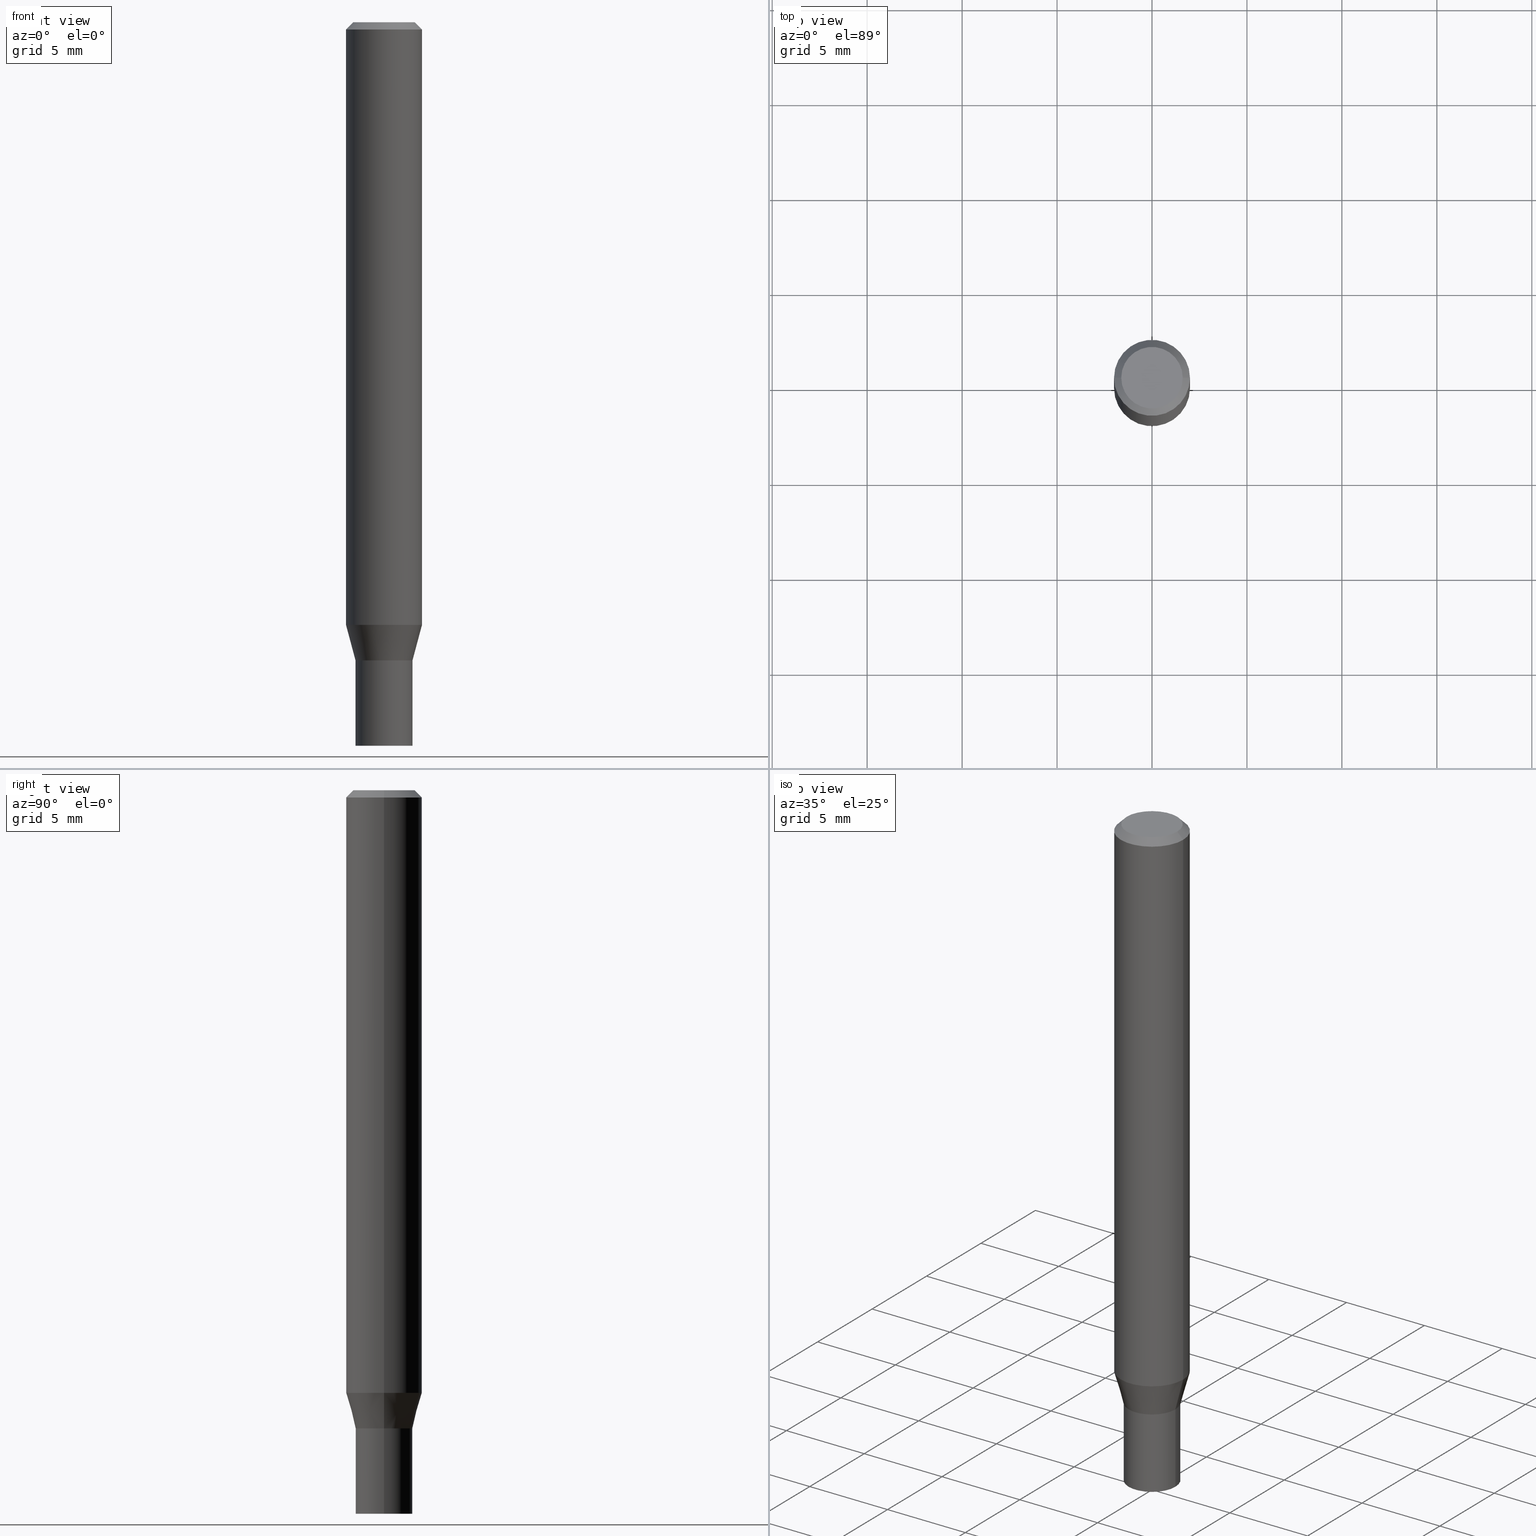
[diagram: canonical four-view strip — front | top / right | iso, engineering-drawing reading convention]
A machine part, canonical four-view strip (front | top / right | iso — engineering-drawing reading convention). The complete STEP part file that produces these views, byte-faithful:
ISO-10303-21;
HEADER;
FILE_DESCRIPTION (( 'STEP AP203' ),
    '1' );
FILE_NAME ('02903.STEP',
    '2024-03-18T22:08:52',
    ( '' ),
    ( '' ),
    'SwSTEP 2.0',
    'SolidWorks 2023',
    '' );
FILE_SCHEMA (( 'CONFIG_CONTROL_DESIGN' ));
ENDSEC;

DATA;
#1 = AXIS2_PLACEMENT_3D ( 'NONE', #93, #374, #340 ) ;
#2 = ORIENTED_EDGE ( 'NONE', *, *, #462, .F. ) ;
#3 = APPROVAL_DATE_TIME ( #115, #203 ) ;
#4 = CARTESIAN_POINT ( 'NONE',  ( 0.000000000000000000, 0.000000000000000000, 0.000000000000000000 ) ) ;
#5 = CARTESIAN_POINT ( 'NONE',  ( -0.07875000000000000056, 4.975360907851462665E-16, -0.01499999999999999944 ) ) ;
#6 = DIRECTION ( 'NONE',  ( -2.445468806185136597E-29, 3.491481338843145583E-15, 1.000000000000000000 ) ) ;
#7 = DATE_AND_TIME ( #288, #436 ) ;
#8 = ADVANCED_FACE ( 'NONE', ( #397 ), #267, .F. ) ;
#9 = CARTESIAN_POINT ( 'NONE',  ( 0.05904999999999992200, -5.029129720469665485E-15, -1.322300000000000253 ) ) ;
#10 = CARTESIAN_POINT ( 'NONE',  ( 3.668203209277705088E-31, -5.237222008264718399E-17, -0.01499999999999999944 ) ) ;
#11 = COORDINATED_UNIVERSAL_TIME_OFFSET ( 5, 0, .BEHIND. ) ;
#12 = EDGE_LOOP ( 'NONE', ( #332, #40, #91, #136 ) ) ;
#13 = CARTESIAN_POINT ( 'NONE',  ( 0.000000000000000000, 0.000000000000000000, 0.000000000000000000 ) ) ;
#14 = EDGE_CURVE ( 'NONE', #253, #335, #94, .T. ) ;
#15 = DIRECTION ( 'NONE',  ( 1.000000000000000000, -6.982962677686265922E-15, 4.852736867747365646E-29 ) ) ;
#16 = CARTESIAN_POINT ( 'NONE',  ( 3.668203209277704895E-29, -5.237222008264718177E-15, -1.500000000000000222 ) ) ;
#17 = CARTESIAN_POINT ( 'NONE',  ( 3.234866136821698561E-29, -4.618531515021712857E-15, -1.322800000000000198 ) ) ;
#18 = VERTEX_POINT ( 'NONE', #406 ) ;
#19 = DIRECTION ( 'NONE',  ( -2.445468806185136877E-29, 3.491481338843145188E-15, 1.000000000000000000 ) ) ;
#20 = APPROVAL_PERSON_ORGANIZATION ( #23, #170, #164 ) ;
#21 = EDGE_CURVE ( 'NONE', #227, #198, #353, .T. ) ;
#22 = DIRECTION ( 'NONE',  ( -2.445468806185136597E-29, 3.491481338843145583E-15, 1.000000000000000000 ) ) ;
#23 = PERSON_AND_ORGANIZATION ( #31, #415 ) ;
#24 = LINE ( 'NONE', #409, #177 ) ;
#25 = DIRECTION ( 'NONE',  ( -0.2588190451025217942, 5.211531920934552619E-15, 0.9659258262890679791 ) ) ;
#26 = CARTESIAN_POINT ( 'NONE',  ( 3.235355230582935570E-29, -4.619229811289481459E-15, -1.323000000000000176 ) ) ;
#27 = AXIS2_PLACEMENT_3D ( 'NONE', #54, #349, #434 ) ;
#28 = CONICAL_SURFACE ( 'NONE', #423, 0.05854999999999999788, 0.7853981633974739252 ) ;
#29 = CARTESIAN_POINT ( 'NONE',  ( 0.07875000000000000056, -5.499083108677934443E-16, 3.839989210939299016E-30 ) ) ;
#30 = DIRECTION ( 'NONE',  ( 1.000000000000000000, 0.000000000000000000, 0.000000000000000000 ) ) ;
#31 = PERSON ( 'UNSPECIFIED', 'UNSPECIFIED', 'UNSPECIFIED', ('UNSPECIFIED'), ('UNSPECIFIED'), ('UNSPECIFIED') ) ;
#32 = APPLICATION_PROTOCOL_DEFINITION ( 'international standard', 'config_control_design', 1994, #225 ) ;
#33 = EDGE_CURVE ( 'NONE', #116, #38, #34, .T. ) ;
#34 = CIRCLE ( 'NONE', #49, 0.06375000000000000111 ) ;
#35 = CONICAL_SURFACE ( 'NONE', #42, 0.05904999999999991506, 0.2617993877991505181 ) ;
#36 = ORIENTED_EDGE ( 'NONE', *, *, #130, .F. ) ;
#37 = ORIENTED_EDGE ( 'NONE', *, *, #249, .T. ) ;
#38 = VERTEX_POINT ( 'NONE', #90 ) ;
#39 =( CONVERSION_BASED_UNIT ( 'INCH', #248 ) LENGTH_UNIT ( ) NAMED_UNIT ( #392 ) );
#40 = ORIENTED_EDGE ( 'NONE', *, *, #341, .T. ) ;
#41 = CONICAL_SURFACE ( 'NONE', #303, 0.05904999999999991506, 0.2617993877991505181 ) ;
#42 = AXIS2_PLACEMENT_3D ( 'NONE', #26, #127, #272 ) ;
#43 = EDGE_LOOP ( 'NONE', ( #36, #2, #287, #72 ) ) ;
#44 = ADVANCED_FACE ( 'NONE', ( #229 ), #56, .T. ) ;
#45 = DIRECTION ( 'NONE',  ( 0.7071067811865426878, -7.319954787623238690E-15, -0.7071067811865523467 ) ) ;
#46 = DIRECTION ( 'NONE',  ( 1.000000000000000000, -6.982962677686266711E-15, 4.876176775795936353E-29 ) ) ;
#47 = FACE_OUTER_BOUND ( 'NONE', #352, .T. ) ;
#48 = EDGE_LOOP ( 'NONE', ( #365, #247, #70, #175 ) ) ;
#49 = AXIS2_PLACEMENT_3D ( 'NONE', #363, #364, #15 ) ;
#50 = CARTESIAN_POINT ( 'NONE',  ( 4.123439461174063267E-16, 0.05904999999999538396, -1.322800000000000420 ) ) ;
#51 = CIRCLE ( 'NONE', #305, 0.07875000000000000056 ) ;
#52 = CARTESIAN_POINT ( 'NONE',  ( 0.000000000000000000, 0.000000000000000000, 0.000000000000000000 ) ) ;
#53 = VERTEX_POINT ( 'NONE', #327 ) ;
#54 = CARTESIAN_POINT ( 'NONE',  ( 3.233643402418606881E-29, -4.616785774352292931E-15, -1.322300000000000253 ) ) ;
#55 = CARTESIAN_POINT ( 'NONE',  ( 0.05904999999999991506, -5.031573757406854801E-15, -1.323000000000000176 ) ) ;
#56 = CYLINDRICAL_SURFACE ( 'NONE', #421, 0.07875000000000000056 ) ;
#57 = LINE ( 'NONE', #63, #403 ) ;
#58 = AXIS2_PLACEMENT_3D ( 'NONE', #52, #270, #304 ) ;
#59 = CARTESIAN_POINT ( 'NONE',  ( 3.234866136821698561E-29, -4.618531515021712857E-15, -1.322800000000000198 ) ) ;
#60 = DATE_AND_TIME ( #411, #209 ) ;
#61 = CARTESIAN_POINT ( 'NONE',  ( 3.055560938072683577E-29, -4.362531212009729741E-15, -1.249478599090893205 ) ) ;
#62 = EDGE_CURVE ( 'NONE', #335, #408, #193, .T. ) ;
#63 = CARTESIAN_POINT ( 'NONE',  ( 0.05904999999999991506, -4.123439461173734410E-16, 2.879382386107495666E-30 ) ) ;
#64 = PERSON_AND_ORGANIZATION ( #31, #415 ) ;
#65 = EDGE_CURVE ( 'NONE', #116, #451, #118, .T. ) ;
#66 = DIRECTION ( 'NONE',  ( 0.000000000000000000, 0.000000000000000000, 1.000000000000000000 ) ) ;
#67 = AXIS2_PLACEMENT_3D ( 'NONE', #362, #329, #184 ) ;
#68 = CIRCLE ( 'NONE', #75, 0.07875000000000000056 ) ;
#69 = VERTEX_POINT ( 'NONE', #219 ) ;
#70 = ORIENTED_EDGE ( 'NONE', *, *, #302, .T. ) ;
#71 = EDGE_CURVE ( 'NONE', #101, #53, #208, .T. ) ;
#72 = ORIENTED_EDGE ( 'NONE', *, *, #239, .T. ) ;
#73 = FACE_OUTER_BOUND ( 'NONE', #439, .T. ) ;
#74 = ORIENTED_EDGE ( 'NONE', *, *, #145, .T. ) ;
#75 = AXIS2_PLACEMENT_3D ( 'NONE', #158, #236, #344 ) ;
#76 = DIRECTION ( 'NONE',  ( -2.445468806185136877E-29, 3.491481338843145188E-15, 1.000000000000000000 ) ) ;
#77 = ORIENTED_EDGE ( 'NONE', *, *, #71, .T. ) ;
#78 = LINE ( 'NONE', #5, #385 ) ;
#79 = PRODUCT_DEFINITION ( 'UNKNOWN', '', #87, #306 ) ;
#80 = FACE_OUTER_BOUND ( 'NONE', #205, .T. ) ;
#81 = ORIENTED_EDGE ( 'NONE', *, *, #232, .T. ) ;
#82 = FACE_OUTER_BOUND ( 'NONE', #12, .T. ) ;
#83 = CARTESIAN_POINT ( 'NONE',  ( 3.234866136821698561E-29, -4.618531515021712857E-15, -1.322800000000000198 ) ) ;
#84 = APPROVAL_DATE_TIME ( #401, #443 ) ;
#85 = CIRCLE ( 'NONE', #27, 0.05904999999999992200 ) ;
#86 = DIRECTION ( 'NONE',  ( 1.000000000000000000, -6.982962677686265922E-15, 4.876176775795935793E-29 ) ) ;
#87 = PRODUCT_DEFINITION_FORMATION_WITH_SPECIFIED_SOURCE ( 'ANY', '', #308, .NOT_KNOWN. ) ;
#88 = CARTESIAN_POINT ( 'NONE',  ( 0.000000000000000000, 0.000000000000000000, 0.000000000000000000 ) ) ;
#89 = DIRECTION ( 'NONE',  ( 1.000000000000000000, -6.982962677686266711E-15, 0.000000000000000000 ) ) ;
#90 = CARTESIAN_POINT ( 'NONE',  ( -0.06375000000000000111, 4.713499807438232199E-16, 2.075856847527766866E-16 ) ) ;
#91 = ORIENTED_EDGE ( 'NONE', *, *, #458, .F. ) ;
#92 = DIRECTION ( 'NONE',  ( -2.445468806185136597E-29, 3.491481338843145583E-15, 1.000000000000000000 ) ) ;
#93 = CARTESIAN_POINT ( 'NONE',  ( 0.000000000000000000, 0.000000000000000000, 0.000000000000000000 ) ) ;
#94 = CIRCLE ( 'NONE', #318, 0.05854999999999999788 ) ;
#95 = CARTESIAN_POINT ( 'NONE',  ( 3.668203209277705088E-31, -5.237222008264718399E-17, -0.01499999999999999944 ) ) ;
#96 = PRODUCT_RELATED_PRODUCT_CATEGORY ( 'detail', '', ( #308 ) ) ;
#97 = ORIENTED_EDGE ( 'NONE', *, *, #249, .F. ) ;
#98 = DIRECTION ( 'NONE',  ( 1.000000000000000000, -6.982962677686264344E-15, 0.000000000000000000 ) ) ;
#99 = DIRECTION ( 'NONE',  ( -2.445468806185136597E-29, 3.491481338843145583E-15, 1.000000000000000000 ) ) ;
#100 = ADVANCED_FACE ( 'NONE', ( #47 ), #112, .F. ) ;
#101 = VERTEX_POINT ( 'NONE', #261 ) ;
#102 = AXIS2_PLACEMENT_3D ( 'NONE', #10, #445, #151 ) ;
#103 = AXIS2_PLACEMENT_3D ( 'NONE', #266, #199, #98 ) ;
#104 = ORIENTED_EDGE ( 'NONE', *, *, #317, .F. ) ;
#105 = ADVANCED_FACE ( 'NONE', ( #80 ), #394, .T. ) ;
#106 = ORIENTED_EDGE ( 'NONE', *, *, #130, .T. ) ;
#107 = ORIENTED_EDGE ( 'NONE', *, *, #412, .F. ) ;
#108 = LINE ( 'NONE', #259, #435 ) ;
#109 = ORIENTED_EDGE ( 'NONE', *, *, #169, .T. ) ;
#110 = VECTOR ( 'NONE', #413, 39.37007874015748143 ) ;
#111 = DIRECTION ( 'NONE',  ( -2.445468806185136597E-29, 3.491481338843145583E-15, 1.000000000000000000 ) ) ;
#112 = PLANE ( 'NONE',  #338 ) ;
#113 = ORIENTED_EDGE ( 'NONE', *, *, #21, .F. ) ;
#114 = CARTESIAN_POINT ( 'NONE',  ( 0.000000000000000000, 0.000000000000000000, 0.000000000000000000 ) ) ;
#115 = DATE_AND_TIME ( #322, #159 ) ;
#116 = VERTEX_POINT ( 'NONE', #216 ) ;
#117 = FACE_OUTER_BOUND ( 'NONE', #427, .T. ) ;
#118 = LINE ( 'NONE', #214, #218 ) ;
#119 = CIRCLE ( 'NONE', #67, 0.05904999999999992200 ) ;
#120 = FACE_OUTER_BOUND ( 'NONE', #123, .T. ) ;
#121 = AXIS2_PLACEMENT_3D ( 'NONE', #277, #311, #168 ) ;
#122 = ORIENTED_EDGE ( 'NONE', *, *, #286, .F. ) ;
#123 = EDGE_LOOP ( 'NONE', ( #77, #140 ) ) ;
#124 = DIRECTION ( 'NONE',  ( 1.000000000000000000, -6.982962677686273021E-15, 0.000000000000000000 ) ) ;
#125 = ORIENTED_EDGE ( 'NONE', *, *, #278, .F. ) ;
#126 = PERSON_AND_ORGANIZATION ( #31, #415 ) ;
#127 = DIRECTION ( 'NONE',  ( -2.445468806185136597E-29, 3.491481338843145583E-15, 1.000000000000000000 ) ) ;
#128 = DIRECTION ( 'NONE',  ( 1.000000000000000000, -6.982962677686265922E-15, 4.852736867747365646E-29 ) ) ;
#129 = SHAPE_DEFINITION_REPRESENTATION ( #384, #210 ) ;
#130 = EDGE_CURVE ( 'NONE', #395, #408, #187, .T. ) ;
#131 = FACE_OUTER_BOUND ( 'NONE', #244, .T. ) ;
#132 = APPROVAL_PERSON_ORGANIZATION ( #185, #203, #294 ) ;
#133 = CARTESIAN_POINT ( 'NONE',  ( 3.235355230582935570E-29, -4.619229811289481459E-15, -1.323000000000000176 ) ) ;
#134 = DIRECTION ( 'NONE',  ( 1.000000000000000000, -6.982962677686266711E-15, 4.876176775795935232E-29 ) ) ;
#135 = CC_DESIGN_APPROVAL ( #170, ( #235 ) ) ;
#136 = ORIENTED_EDGE ( 'NONE', *, *, #302, .F. ) ;
#137 = APPLICATION_PROTOCOL_DEFINITION ( 'international standard', 'config_control_design', 1994, #162 ) ;
#138 = ADVANCED_FACE ( 'NONE', ( #153 ), #404, .F. ) ;
#139 = AXIS2_PLACEMENT_3D ( 'NONE', #13, #189, #152 ) ;
#140 = ORIENTED_EDGE ( 'NONE', *, *, #317, .T. ) ;
#141 = APPROVAL_ROLE ( '' ) ;
#142 = VERTEX_POINT ( 'NONE', #242 ) ;
#143 = CARTESIAN_POINT ( 'NONE',  ( 3.668203209277705088E-31, -5.237222008264718399E-17, -0.01499999999999999944 ) ) ;
#144 = ORIENTED_EDGE ( 'NONE', *, *, #163, .T. ) ;
#145 = EDGE_CURVE ( 'NONE', #253, #268, #292, .T. ) ;
#146 = DIRECTION ( 'NONE',  ( -0.7071067811865426878, 2.468850131082206573E-15, -0.7071067811865523467 ) ) ;
#147 = AXIS2_PLACEMENT_3D ( 'NONE', #262, #402, #86 ) ;
#148 = DATE_TIME_ROLE ( 'creation_date' ) ;
#149 = CIRCLE ( 'NONE', #376, 0.07875000000000000056 ) ;
#150 = DIRECTION ( 'NONE',  ( 2.438088387897960049E-29, -3.491481338843145188E-15, -1.000000000000000000 ) ) ;
#151 = DIRECTION ( 'NONE',  ( -1.000000000000000000, 6.982962677686265922E-15, 0.000000000000000000 ) ) ;
#152 = DIRECTION ( 'NONE',  ( 1.000000000000000000, -6.982962677686265922E-15, 4.876176775795935232E-29 ) ) ;
#153 = FACE_OUTER_BOUND ( 'NONE', #43, .T. ) ;
#154 = CARTESIAN_POINT ( 'NONE',  ( 3.668203209277704895E-29, -5.237222008264718177E-15, -1.500000000000000222 ) ) ;
#155 = COORDINATED_UNIVERSAL_TIME_OFFSET ( 5, 0, .BEHIND. ) ;
#156 = ORIENTED_EDGE ( 'NONE', *, *, #316, .T. ) ;
#157 = AXIS2_PLACEMENT_3D ( 'NONE', #230, #420, #128 ) ;
#158 = CARTESIAN_POINT ( 'NONE',  ( 3.055560938072683577E-29, -4.362531212009729741E-15, -1.249478599090893205 ) ) ;
#159 = LOCAL_TIME ( 18, 8, 52.00000000000000000, #180 ) ;
#160 = DIRECTION ( 'NONE',  ( 1.000000000000000000, -6.982962677686265922E-15, 4.876176775795935232E-29 ) ) ;
#161 = FACE_OUTER_BOUND ( 'NONE', #282, .T. ) ;
#162 = APPLICATION_CONTEXT ( 'configuration controlled 3d designs of mechanical parts and assemblies' ) ;
#163 = EDGE_CURVE ( 'NONE', #408, #268, #85, .T. ) ;
#164 = APPROVAL_ROLE ( '' ) ;
#165 = DIRECTION ( 'NONE',  ( -2.445468806185136597E-29, 3.491481338843145583E-15, 1.000000000000000000 ) ) ;
#166 = CARTESIAN_POINT ( 'NONE',  ( 4.451638707024993845E-16, 0.06375000000000000111, -1.187890929748605601E-16 ) ) ;
#167 = CLOSED_SHELL ( 'NONE', ( #8, #387, #444, #44, #285, #456, #174, #105, #461, #181, #370, #138 ) ) ;
#168 = DIRECTION ( 'NONE',  ( 1.000000000000000000, -6.982962677686264344E-15, 0.000000000000000000 ) ) ;
#169 = EDGE_CURVE ( 'NONE', #38, #116, #366, .T. ) ;
#170 = APPROVAL ( #233, 'UNSPECIFIED' ) ;
#171 = CIRCLE ( 'NONE', #330, 0.05904999999999991506 ) ;
#172 = ORIENTED_EDGE ( 'NONE', *, *, #337, .F. ) ;
#173 =( LENGTH_UNIT ( ) NAMED_UNIT ( * ) SI_UNIT ( $, .METRE. ) );
#174 = ADVANCED_FACE ( 'NONE', ( #255 ), #371, .T. ) ;
#175 = ORIENTED_EDGE ( 'NONE', *, *, #348, .F. ) ;
#176 = ORIENTED_EDGE ( 'NONE', *, *, #33, .T. ) ;
#177 = VECTOR ( 'NONE', #419, 39.37007874015748143 ) ;
#178 = CONICAL_SURFACE ( 'NONE', #246, 0.07875000000000000056, 0.7853981633974415066 ) ;
#179 = ORIENTED_EDGE ( 'NONE', *, *, #14, .F. ) ;
#180 = COORDINATED_UNIVERSAL_TIME_OFFSET ( 5, 0, .BEHIND. ) ;
#181 = ADVANCED_FACE ( 'NONE', ( #117 ), #333, .F. ) ;
#182 = ORIENTED_EDGE ( 'NONE', *, *, #21, .T. ) ;
#183 = PERSON_AND_ORGANIZATION_ROLE ( 'creator' ) ;
#184 = DIRECTION ( 'NONE',  ( 1.000000000000000000, -6.982962677686265922E-15, 0.000000000000000000 ) ) ;
#185 = PERSON_AND_ORGANIZATION ( #31, #415 ) ;
#186 = CARTESIAN_POINT ( 'NONE',  ( 0.05854999999999999788, -5.027383979800243981E-15, -1.322800000000000198 ) ) ;
#187 = LINE ( 'NONE', #298, #283 ) ;
#188 = DIRECTION ( 'NONE',  ( -2.445468806185136597E-29, 3.491481338843145583E-15, 1.000000000000000000 ) ) ;
#189 = DIRECTION ( 'NONE',  ( -2.445468806185136597E-29, 3.491481338843145583E-15, 1.000000000000000000 ) ) ;
#190 = ADVANCED_FACE ( 'NONE', ( #73 ), #207, .T. ) ;
#191 = EDGE_LOOP ( 'NONE', ( #125, #106, #144, #172 ) ) ;
#192 = CARTESIAN_POINT ( 'NONE',  ( -0.05904999999999991506, -4.199654325823143543E-15, -1.323000000000000176 ) ) ;
#193 = LINE ( 'NONE', #309, #312 ) ;
#194 = VECTOR ( 'NONE', #290, 39.37007874015748143 ) ;
#195 = CYLINDRICAL_SURFACE ( 'NONE', #1, 0.05904999999999999832 ) ;
#196 = PLANE ( 'NONE',  #367 ) ;
#197 = DIRECTION ( 'NONE',  ( 2.445468806185136597E-29, -3.491481338843145583E-15, -1.000000000000000000 ) ) ;
#198 = VERTEX_POINT ( 'NONE', #224 ) ;
#199 = DIRECTION ( 'NONE',  ( -2.445468806185136597E-29, 3.491481338843145583E-15, 1.000000000000000000 ) ) ;
#200 = EDGE_CURVE ( 'NONE', #198, #227, #201, .T. ) ;
#201 = CIRCLE ( 'NONE', #204, 0.05904999999999999832 ) ;
#202 = LOCAL_TIME ( 18, 8, 52.00000000000000000, #11 ) ;
#203 = APPROVAL ( #212, 'UNSPECIFIED' ) ;
#204 = AXIS2_PLACEMENT_3D ( 'NONE', #16, #188, #215 ) ;
#205 = EDGE_LOOP ( 'NONE', ( #296, #448, #321, #81 ) ) ;
#206 = ORIENTED_EDGE ( 'NONE', *, *, #243, .F. ) ;
#207 = CYLINDRICAL_SURFACE ( 'NONE', #358, 0.05904999999999999832 ) ;
#208 = CIRCLE ( 'NONE', #279, 0.05904999999999999832 ) ;
#209 = LOCAL_TIME ( 18, 8, 52.00000000000000000, #342 ) ;
#210 = ADVANCED_BREP_SHAPE_REPRESENTATION ( '02903', ( #417, #251, #284 ), #222 ) ;
#211 = ORIENTED_EDGE ( 'NONE', *, *, #33, .F. ) ;
#212 = APPROVAL_STATUS ( 'not_yet_approved' ) ;
#213 = LINE ( 'NONE', #325, #234 ) ;
#214 = CARTESIAN_POINT ( 'NONE',  ( 0.07875000000000000056, -5.926364374071552647E-16, -0.01499999999999999944 ) ) ;
#215 = DIRECTION ( 'NONE',  ( 1.000000000000000000, -6.982962677686273021E-15, 0.000000000000000000 ) ) ;
#216 = CARTESIAN_POINT ( 'NONE',  ( 0.06375000000000000111, -5.149965923825448321E-16, 2.075856847527832686E-16 ) ) ;
#217 = CARTESIAN_POINT ( 'NONE',  ( 3.235355230582935570E-29, -4.619229811289481459E-15, -1.323000000000000176 ) ) ;
#218 = VECTOR ( 'NONE', #45, 39.37007874015748143 ) ;
#219 = CARTESIAN_POINT ( 'NONE',  ( 0.07875000000000000056, -4.912439522877523087E-15, -1.249478599090893205 ) ) ;
#220 = PERSON_AND_ORGANIZATION ( #31, #415 ) ;
#221 = ADVANCED_FACE ( 'NONE', ( #120 ), #359, .F. ) ;
#222 =( GEOMETRIC_REPRESENTATION_CONTEXT ( 3 ) GLOBAL_UNCERTAINTY_ASSIGNED_CONTEXT ( ( #223 ) ) GLOBAL_UNIT_ASSIGNED_CONTEXT ( ( #39, #459, #464 ) ) REPRESENTATION_CONTEXT ( 'NONE', 'WORKASPACE' ) );
#223 = UNCERTAINTY_MEASURE_WITH_UNIT (LENGTH_MEASURE( 1.000000000000000082E-05 ), #39, 'distance_accuracy_value', 'NONE');
#224 = CARTESIAN_POINT ( 'NONE',  ( 0.05904999999999999832, -5.649565954382093097E-15, -1.500000000000000222 ) ) ;
#225 = APPLICATION_CONTEXT ( 'configuration controlled 3d designs of mechanical parts and assemblies' ) ;
#226 = DIRECTION ( 'NONE',  ( -2.445468806185136597E-29, 3.491481338843145583E-15, 1.000000000000000000 ) ) ;
#227 = VERTEX_POINT ( 'NONE', #399 ) ;
#228 = CARTESIAN_POINT ( 'NONE',  ( -0.05904999999999992200, -4.197210288885953438E-15, -1.322300000000000253 ) ) ;
#229 = FACE_OUTER_BOUND ( 'NONE', #331, .T. ) ;
#230 = CARTESIAN_POINT ( 'NONE',  ( -5.076443166735047805E-45, 7.247815445253071091E-31, 2.075856847527799160E-16 ) ) ;
#231 = LINE ( 'NONE', #192, #354 ) ;
#232 = EDGE_CURVE ( 'NONE', #142, #451, #460, .T. ) ;
#233 = APPROVAL_STATUS ( 'not_yet_approved' ) ;
#234 = VECTOR ( 'NONE', #396, 39.37007874015748143 ) ;
#235 = SECURITY_CLASSIFICATION ( '', '', #380 ) ;
#236 = DIRECTION ( 'NONE',  ( -2.445468806185136597E-29, 3.491481338843145583E-15, 1.000000000000000000 ) ) ;
#237 = DIRECTION ( 'NONE',  ( 1.000000000000000000, -6.982962677686261977E-15, 0.000000000000000000 ) ) ;
#238 = CARTESIAN_POINT ( 'NONE',  ( 0.07875000000000000056, -6.022805309504406221E-16, -0.01499999999999999944 ) ) ;
#239 = EDGE_CURVE ( 'NONE', #268, #408, #119, .T. ) ;
#240 = CLOSED_SHELL ( 'NONE', ( #373, #100, #190, #221 ) ) ;
#241 = CONICAL_SURFACE ( 'NONE', #121, 0.05854999999999999788, 0.7853981633974739252 ) ;
#242 = CARTESIAN_POINT ( 'NONE',  ( -0.07875000000000000056, -1.647899311635109609E-15, -0.01499999999999999944 ) ) ;
#243 = EDGE_CURVE ( 'NONE', #198, #101, #108, .T. ) ;
#244 = EDGE_LOOP ( 'NONE', ( #391, #37, #254, #206 ) ) ;
#245 = AXIS2_PLACEMENT_3D ( 'NONE', #154, #22, #300 ) ;
#246 = AXIS2_PLACEMENT_3D ( 'NONE', #95, #197, #336 ) ;
#247 = ORIENTED_EDGE ( 'NONE', *, *, #278, .T. ) ;
#248 = LENGTH_MEASURE_WITH_UNIT ( LENGTH_MEASURE( 0.02539999999999999897 ), #173 );
#249 = EDGE_CURVE ( 'NONE', #227, #53, #213, .T. ) ;
#250 = ORIENTED_EDGE ( 'NONE', *, *, #65, .T. ) ;
#251 = MANIFOLD_SOLID_BREP ( 'Body-Move/Copy2[2]', #167 ) ;
#252 = CC_DESIGN_PERSON_AND_ORGANIZATION_ASSIGNMENT ( #64, #350, ( #308 ) ) ;
#253 = VERTEX_POINT ( 'NONE', #186 ) ;
#254 = ORIENTED_EDGE ( 'NONE', *, *, #71, .F. ) ;
#255 = FACE_OUTER_BOUND ( 'NONE', #289, .T. ) ;
#256 = CARTESIAN_POINT ( 'NONE',  ( 3.576687321579069994E-29, -5.368277968210015545E-15, -1.500000000000000222 ) ) ;
#257 = APPROVAL_STATUS ( 'not_yet_approved' ) ;
#258 = ORIENTED_EDGE ( 'NONE', *, *, #276, .F. ) ;
#259 = CARTESIAN_POINT ( 'NONE',  ( 0.05904999999999999832, -4.123439461173740327E-16, 2.879382386107500220E-30 ) ) ;
#260 = CC_DESIGN_DATE_AND_TIME_ASSIGNMENT ( #7, #148, ( #79 ) ) ;
#261 = CARTESIAN_POINT ( 'NONE',  ( 0.05904999999999999832, -5.030875461139087777E-15, -1.322800000000000198 ) ) ;
#262 = CARTESIAN_POINT ( 'NONE',  ( 3.234866136821698561E-29, -4.618531515021712857E-15, -1.322800000000000198 ) ) ;
#263 = AXIS2_PLACEMENT_3D ( 'NONE', #143, #291, #431 ) ;
#264 = DIRECTION ( 'NONE',  ( -2.438088387897960049E-29, 3.491481338843145188E-15, 1.000000000000000000 ) ) ;
#265 = CC_DESIGN_SECURITY_CLASSIFICATION ( #235, ( #87 ) ) ;
#266 = CARTESIAN_POINT ( 'NONE',  ( 3.234866136821698561E-29, -4.618531515021712857E-15, -1.322800000000000198 ) ) ;
#267 = CYLINDRICAL_SURFACE ( 'NONE', #58, 0.05904999999999991506 ) ;
#268 = VERTEX_POINT ( 'NONE', #9 ) ;
#269 = CARTESIAN_POINT ( 'NONE',  ( -0.07875000000000000056, -3.802978807598650940E-15, -1.249478599090893205 ) ) ;
#270 = DIRECTION ( 'NONE',  ( -2.445468806185136597E-29, 3.491481338843145583E-15, 1.000000000000000000 ) ) ;
#271 = PERSON_AND_ORGANIZATION_ROLE ( 'design_supplier' ) ;
#272 = DIRECTION ( 'NONE',  ( 1.000000000000000000, -6.982962677686266711E-15, 0.000000000000000000 ) ) ;
#273 = AXIS2_PLACEMENT_3D ( 'NONE', #295, #111, #440 ) ;
#274 = CIRCLE ( 'NONE', #103, 0.05854999999999999788 ) ;
#275 = CARTESIAN_POINT ( 'NONE',  ( 3.668203209277705088E-31, -5.237222008264718399E-17, -0.01499999999999999944 ) ) ;
#276 = EDGE_CURVE ( 'NONE', #38, #142, #78, .T. ) ;
#277 = CARTESIAN_POINT ( 'NONE',  ( 3.234866136821698561E-29, -4.618531515021712857E-15, -1.322800000000000198 ) ) ;
#278 = EDGE_CURVE ( 'NONE', #395, #18, #414, .T. ) ;
#279 = AXIS2_PLACEMENT_3D ( 'NONE', #83, #6, #437 ) ;
#280 = LOCAL_TIME ( 18, 8, 52.00000000000000000, #155 ) ;
#281 = EDGE_LOOP ( 'NONE', ( #109, #176 ) ) ;
#282 = EDGE_LOOP ( 'NONE', ( #319, #372, #429, #430 ) ) ;
#283 = VECTOR ( 'NONE', #441, 39.37007874015748143 ) ;
#284 = AXIS2_PLACEMENT_3D ( 'NONE', #347, #66, #30 ) ;
#285 = ADVANCED_FACE ( 'NONE', ( #82 ), #41, .T. ) ;
#286 = EDGE_CURVE ( 'NONE', #324, #142, #24, .T. ) ;
#287 = ORIENTED_EDGE ( 'NONE', *, *, #337, .T. ) ;
#288 = CALENDAR_DATE ( 2024, 18, 3 ) ;
#289 = EDGE_LOOP ( 'NONE', ( #122, #398, #388, #293 ) ) ;
#290 = DIRECTION ( 'NONE',  ( 0.7071067811865656694, -2.468850131082446387E-15, 0.7071067811865294761 ) ) ;
#291 = DIRECTION ( 'NONE',  ( -2.445468806185136597E-29, 3.491481338843145583E-15, 1.000000000000000000 ) ) ;
#292 = LINE ( 'NONE', #425, #194 ) ;
#293 = ORIENTED_EDGE ( 'NONE', *, *, #232, .F. ) ;
#294 = APPROVAL_ROLE ( '' ) ;
#295 = CARTESIAN_POINT ( 'NONE',  ( 3.235355230582935570E-29, -4.619229811289481459E-15, -1.323000000000000176 ) ) ;
#296 = ORIENTED_EDGE ( 'NONE', *, *, #65, .F. ) ;
#297 = ORIENTED_EDGE ( 'NONE', *, *, #316, .F. ) ;
#298 = CARTESIAN_POINT ( 'NONE',  ( -0.05904999999999991506, 4.195754854663385562E-16, -2.904631170795517688E-30 ) ) ;
#299 = CALENDAR_DATE ( 2024, 18, 3 ) ;
#300 = DIRECTION ( 'NONE',  ( 1.000000000000000000, -6.982962677686273021E-15, 0.000000000000000000 ) ) ;
#301 = PERSON_AND_ORGANIZATION ( #31, #415 ) ;
#302 = EDGE_CURVE ( 'NONE', #18, #69, #453, .T. ) ;
#303 = AXIS2_PLACEMENT_3D ( 'NONE', #217, #165, #89 ) ;
#304 = DIRECTION ( 'NONE',  ( 1.000000000000000000, -6.982962677686266711E-15, 4.876176775795935232E-29 ) ) ;
#305 = AXIS2_PLACEMENT_3D ( 'NONE', #275, #92, #375 ) ;
#306 = DESIGN_CONTEXT ( 'detailed design', #225, 'design' ) ;
#307 = FACE_OUTER_BOUND ( 'NONE', #355, .T. ) ;
#308 = PRODUCT ( '02903', '02903', '', ( #386 ) ) ;
#309 = CARTESIAN_POINT ( 'NONE',  ( -0.05854999999999999788, -4.202508743234174263E-15, -1.322800000000000198 ) ) ;
#310 = CARTESIAN_POINT ( 'NONE',  ( 3.234866136821698561E-29, -4.618531515021712857E-15, -1.322800000000000198 ) ) ;
#311 = DIRECTION ( 'NONE',  ( -2.445468806185136597E-29, 3.491481338843145583E-15, 1.000000000000000000 ) ) ;
#312 = VECTOR ( 'NONE', #410, 39.37007874015748143 ) ;
#313 = CIRCLE ( 'NONE', #360, 0.05904999999999999832 ) ;
#314 = DIRECTION ( 'NONE',  ( 2.438088387897960049E-29, -3.491481338843145188E-15, -1.000000000000000000 ) ) ;
#315 = DIRECTION ( 'NONE',  ( 1.000000000000000000, -6.982962677686264344E-15, 0.000000000000000000 ) ) ;
#316 = EDGE_CURVE ( 'NONE', #451, #142, #51, .T. ) ;
#317 = EDGE_CURVE ( 'NONE', #53, #101, #313, .T. ) ;
#318 = AXIS2_PLACEMENT_3D ( 'NONE', #17, #339, #334 ) ;
#319 = ORIENTED_EDGE ( 'NONE', *, *, #14, .T. ) ;
#320 = ORIENTED_EDGE ( 'NONE', *, *, #243, .T. ) ;
#321 = ORIENTED_EDGE ( 'NONE', *, *, #276, .T. ) ;
#322 = CALENDAR_DATE ( 2024, 18, 3 ) ;
#323 = DIRECTION ( 'NONE',  ( -1.000000000000000000, 6.982962677686265922E-15, -4.876176775795935793E-29 ) ) ;
#324 = VERTEX_POINT ( 'NONE', #269 ) ;
#325 = CARTESIAN_POINT ( 'NONE',  ( -0.05904999999999999832, 4.195754854663391478E-16, -2.904631170795521892E-30 ) ) ;
#326 = CC_DESIGN_PERSON_AND_ORGANIZATION_ASSIGNMENT ( #126, #447, ( #235 ) ) ;
#327 = CARTESIAN_POINT ( 'NONE',  ( -0.05904999999999999832, -4.508301276176876418E-15, -1.322800000000000198 ) ) ;
#328 = COORDINATED_UNIVERSAL_TIME_OFFSET ( 5, 0, .BEHIND. ) ;
#329 = DIRECTION ( 'NONE',  ( -2.445468806185136597E-29, 3.491481338843145583E-15, 1.000000000000000000 ) ) ;
#330 = AXIS2_PLACEMENT_3D ( 'NONE', #133, #99, #424 ) ;
#331 = EDGE_LOOP ( 'NONE', ( #356, #463, #297, #107 ) ) ;
#332 = ORIENTED_EDGE ( 'NONE', *, *, #462, .T. ) ;
#333 = PLANE ( 'NONE',  #147 ) ;
#334 = DIRECTION ( 'NONE',  ( 1.000000000000000000, -6.982962677686264344E-15, 0.000000000000000000 ) ) ;
#335 = VERTEX_POINT ( 'NONE', #381 ) ;
#336 = DIRECTION ( 'NONE',  ( -1.000000000000000000, 6.982962677686265922E-15, 0.000000000000000000 ) ) ;
#337 = EDGE_CURVE ( 'NONE', #18, #268, #57, .T. ) ;
#338 = AXIS2_PLACEMENT_3D ( 'NONE', #256, #264, #368 ) ;
#339 = DIRECTION ( 'NONE',  ( -2.445468806185136597E-29, 3.491481338843145583E-15, 1.000000000000000000 ) ) ;
#340 = DIRECTION ( 'NONE',  ( 1.000000000000000000, -6.982962677686266711E-15, 4.876176775795936353E-29 ) ) ;
#341 = EDGE_CURVE ( 'NONE', #395, #324, #231, .T. ) ;
#342 = COORDINATED_UNIVERSAL_TIME_OFFSET ( 5, 0, .BEHIND. ) ;
#343 = FACE_OUTER_BOUND ( 'NONE', #361, .T. ) ;
#344 = DIRECTION ( 'NONE',  ( 1.000000000000000000, -6.982962677686261977E-15, 0.000000000000000000 ) ) ;
#345 = CC_DESIGN_APPROVAL ( #203, ( #79 ) ) ;
#346 = FACE_OUTER_BOUND ( 'NONE', #48, .T. ) ;
#347 = CARTESIAN_POINT ( 'NONE',  ( 0.000000000000000000, 0.000000000000000000, 0.000000000000000000 ) ) ;
#348 = EDGE_CURVE ( 'NONE', #324, #69, #149, .T. ) ;
#349 = DIRECTION ( 'NONE',  ( -2.445468806185136597E-29, 3.491481338843145583E-15, 1.000000000000000000 ) ) ;
#350 = PERSON_AND_ORGANIZATION_ROLE ( 'design_owner' ) ;
#351 = CC_DESIGN_DATE_AND_TIME_ASSIGNMENT ( #60, #418, ( #235 ) ) ;
#352 = EDGE_LOOP ( 'NONE', ( #390, #113 ) ) ;
#353 = CIRCLE ( 'NONE', #245, 0.05904999999999999832 ) ;
#354 = VECTOR ( 'NONE', #25, 39.37007874015748143 ) ;
#355 = EDGE_LOOP ( 'NONE', ( #211, #250, #156, #258 ) ) ;
#356 = ORIENTED_EDGE ( 'NONE', *, *, #458, .T. ) ;
#357 = ORIENTED_EDGE ( 'NONE', *, *, #426, .F. ) ;
#358 = AXIS2_PLACEMENT_3D ( 'NONE', #4, #446, #46 ) ;
#359 = PLANE ( 'NONE',  #466 ) ;
#360 = AXIS2_PLACEMENT_3D ( 'NONE', #59, #449, #124 ) ;
#361 = EDGE_LOOP ( 'NONE', ( #442, #433, #74, #393 ) ) ;
#362 = CARTESIAN_POINT ( 'NONE',  ( 3.233643402418606881E-29, -4.616785774352292931E-15, -1.322300000000000253 ) ) ;
#363 = CARTESIAN_POINT ( 'NONE',  ( -5.076443166735047805E-45, 7.247815445253071091E-31, 2.075856847527799160E-16 ) ) ;
#364 = DIRECTION ( 'NONE',  ( -2.445468806185136597E-29, 3.491481338843145583E-15, 1.000000000000000000 ) ) ;
#365 = ORIENTED_EDGE ( 'NONE', *, *, #341, .F. ) ;
#366 = CIRCLE ( 'NONE', #157, 0.06375000000000000111 ) ;
#367 = AXIS2_PLACEMENT_3D ( 'NONE', #166, #314, #455 ) ;
#368 = DIRECTION ( 'NONE',  ( 1.000000000000000000, -6.982962677686265922E-15, 4.876176775795935793E-29 ) ) ;
#369 = PERSON_AND_ORGANIZATION ( #31, #415 ) ;
#370 = ADVANCED_FACE ( 'NONE', ( #343 ), #241, .T. ) ;
#371 = CYLINDRICAL_SURFACE ( 'NONE', #139, 0.07875000000000000056 ) ;
#372 = ORIENTED_EDGE ( 'NONE', *, *, #62, .T. ) ;
#373 = ADVANCED_FACE ( 'NONE', ( #131 ), #195, .T. ) ;
#374 = DIRECTION ( 'NONE',  ( -2.445468806185136597E-29, 3.491481338843145583E-15, 1.000000000000000000 ) ) ;
#375 = DIRECTION ( 'NONE',  ( 1.000000000000000000, -6.982962677686265922E-15, 0.000000000000000000 ) ) ;
#376 = AXIS2_PLACEMENT_3D ( 'NONE', #61, #383, #237 ) ;
#377 = DATE_AND_TIME ( #407, #280 ) ;
#378 = FACE_OUTER_BOUND ( 'NONE', #281, .T. ) ;
#379 = CC_DESIGN_PERSON_AND_ORGANIZATION_ASSIGNMENT ( #369, #183, ( #79 ) ) ;
#380 = SECURITY_CLASSIFICATION_LEVEL ( 'unclassified' ) ;
#381 = CARTESIAN_POINT ( 'NONE',  ( -0.05854999999999999788, -4.199859516060063851E-15, -1.322800000000000198 ) ) ;
#382 = APPROVAL_DATE_TIME ( #377, #170 ) ;
#383 = DIRECTION ( 'NONE',  ( -2.445468806185136597E-29, 3.491481338843145583E-15, 1.000000000000000000 ) ) ;
#384 = PRODUCT_DEFINITION_SHAPE ( 'NONE', 'NONE',  #79 ) ;
#385 = VECTOR ( 'NONE', #146, 39.37007874015748143 ) ;
#386 = MECHANICAL_CONTEXT ( 'NONE', #162, 'mechanical' ) ;
#387 = ADVANCED_FACE ( 'NONE', ( #161 ), #28, .T. ) ;
#388 = ORIENTED_EDGE ( 'NONE', *, *, #412, .T. ) ;
#389 = VECTOR ( 'NONE', #19, 39.37007874015748143 ) ;
#390 = ORIENTED_EDGE ( 'NONE', *, *, #200, .F. ) ;
#391 = ORIENTED_EDGE ( 'NONE', *, *, #200, .T. ) ;
#392 = DIMENSIONAL_EXPONENTS ( 1.000000000000000000, 0.000000000000000000, 0.000000000000000000, 0.000000000000000000, 0.000000000000000000, 0.000000000000000000, 0.000000000000000000 ) ;
#393 = ORIENTED_EDGE ( 'NONE', *, *, #163, .F. ) ;
#394 = CONICAL_SURFACE ( 'NONE', #102, 0.07875000000000000056, 0.7853981633974415066 ) ;
#395 = VERTEX_POINT ( 'NONE', #457 ) ;
#396 = DIRECTION ( 'NONE',  ( -2.445468806185136877E-29, 3.491481338843145188E-15, 1.000000000000000000 ) ) ;
#397 = FACE_OUTER_BOUND ( 'NONE', #191, .T. ) ;
#398 = ORIENTED_EDGE ( 'NONE', *, *, #348, .T. ) ;
#399 = CARTESIAN_POINT ( 'NONE',  ( -0.05904999999999999832, -4.508301276176876418E-15, -1.500000000000000222 ) ) ;
#400 = DIRECTION ( 'NONE',  ( -2.445468806185136597E-29, 3.491481338843145583E-15, 1.000000000000000000 ) ) ;
#401 = DATE_AND_TIME ( #299, #202 ) ;
#402 = DIRECTION ( 'NONE',  ( -2.438088387897960049E-29, 3.491481338843145188E-15, 1.000000000000000000 ) ) ;
#403 = VECTOR ( 'NONE', #405, 39.37007874015748143 ) ;
#404 = CYLINDRICAL_SURFACE ( 'NONE', #428, 0.05904999999999991506 ) ;
#405 = DIRECTION ( 'NONE',  ( -2.445468806185136877E-29, 3.491481338843145188E-15, 1.000000000000000000 ) ) ;
#406 = CARTESIAN_POINT ( 'NONE',  ( 0.05904999999999991506, -5.031573757406854801E-15, -1.323000000000000176 ) ) ;
#407 = CALENDAR_DATE ( 2024, 18, 3 ) ;
#408 = VERTEX_POINT ( 'NONE', #228 ) ;
#409 = CARTESIAN_POINT ( 'NONE',  ( -0.07875000000000000056, 5.595524044110789003E-16, -3.873661383575737792E-30 ) ) ;
#410 = DIRECTION ( 'NONE',  ( -0.7071067811865656694, 7.493145998870420424E-15, 0.7071067811865294761 ) ) ;
#411 = CALENDAR_DATE ( 2024, 18, 3 ) ;
#412 = EDGE_CURVE ( 'NONE', #69, #451, #416, .T. ) ;
#413 = DIRECTION ( 'NONE',  ( 0.2588190451025217942, 1.565188264969618812E-15, 0.9659258262890679791 ) ) ;
#414 = CIRCLE ( 'NONE', #273, 0.05904999999999991506 ) ;
#415 = ORGANIZATION ( 'UNSPECIFIED', 'UNSPECIFIED', '' ) ;
#416 = LINE ( 'NONE', #29, #389 ) ;
#417 = MANIFOLD_SOLID_BREP ( 'Body-Move/Copy2[1]', #240 ) ;
#418 = DATE_TIME_ROLE ( 'classification_date' ) ;
#419 = DIRECTION ( 'NONE',  ( -2.445468806185136877E-29, 3.491481338843145188E-15, 1.000000000000000000 ) ) ;
#420 = DIRECTION ( 'NONE',  ( -2.445468806185136597E-29, 3.491481338843145583E-15, 1.000000000000000000 ) ) ;
#421 = AXIS2_PLACEMENT_3D ( 'NONE', #114, #400, #160 ) ;
#422 = APPROVAL_PERSON_ORGANIZATION ( #438, #443, #141 ) ;
#423 = AXIS2_PLACEMENT_3D ( 'NONE', #310, #452, #315 ) ;
#424 = DIRECTION ( 'NONE',  ( 1.000000000000000000, -6.982962677686266711E-15, 0.000000000000000000 ) ) ;
#425 = CARTESIAN_POINT ( 'NONE',  ( 0.05854999999999999788, -5.027383979800243981E-15, -1.322800000000000198 ) ) ;
#426 = EDGE_CURVE ( 'NONE', #335, #253, #274, .T. ) ;
#427 = EDGE_LOOP ( 'NONE', ( #179, #357 ) ) ;
#428 = AXIS2_PLACEMENT_3D ( 'NONE', #88, #226, #134 ) ;
#429 = ORIENTED_EDGE ( 'NONE', *, *, #239, .F. ) ;
#430 = ORIENTED_EDGE ( 'NONE', *, *, #145, .F. ) ;
#431 = DIRECTION ( 'NONE',  ( 1.000000000000000000, -6.982962677686265922E-15, 0.000000000000000000 ) ) ;
#432 = CC_DESIGN_PERSON_AND_ORGANIZATION_ASSIGNMENT ( #301, #271, ( #87 ) ) ;
#433 = ORIENTED_EDGE ( 'NONE', *, *, #426, .T. ) ;
#434 = DIRECTION ( 'NONE',  ( 1.000000000000000000, -6.982962677686265922E-15, 0.000000000000000000 ) ) ;
#435 = VECTOR ( 'NONE', #76, 39.37007874015748143 ) ;
#436 = LOCAL_TIME ( 18, 8, 52.00000000000000000, #328 ) ;
#437 = DIRECTION ( 'NONE',  ( 1.000000000000000000, -6.982962677686273021E-15, 0.000000000000000000 ) ) ;
#438 = PERSON_AND_ORGANIZATION ( #31, #415 ) ;
#439 = EDGE_LOOP ( 'NONE', ( #97, #182, #320, #104 ) ) ;
#440 = DIRECTION ( 'NONE',  ( 1.000000000000000000, -6.982962677686266711E-15, 0.000000000000000000 ) ) ;
#441 = DIRECTION ( 'NONE',  ( -2.445468806185136877E-29, 3.491481338843145188E-15, 1.000000000000000000 ) ) ;
#442 = ORIENTED_EDGE ( 'NONE', *, *, #62, .F. ) ;
#443 = APPROVAL ( #257, 'UNSPECIFIED' ) ;
#444 = ADVANCED_FACE ( 'NONE', ( #307 ), #178, .T. ) ;
#445 = DIRECTION ( 'NONE',  ( 2.445468806185136597E-29, -3.491481338843145583E-15, -1.000000000000000000 ) ) ;
#446 = DIRECTION ( 'NONE',  ( -2.445468806185136597E-29, 3.491481338843145583E-15, 1.000000000000000000 ) ) ;
#447 = PERSON_AND_ORGANIZATION_ROLE ( 'classification_officer' ) ;
#448 = ORIENTED_EDGE ( 'NONE', *, *, #169, .F. ) ;
#449 = DIRECTION ( 'NONE',  ( -2.445468806185136597E-29, 3.491481338843145583E-15, 1.000000000000000000 ) ) ;
#450 = CC_DESIGN_PERSON_AND_ORGANIZATION_ASSIGNMENT ( #220, #465, ( #87 ) ) ;
#451 = VERTEX_POINT ( 'NONE', #238 ) ;
#452 = DIRECTION ( 'NONE',  ( -2.445468806185136597E-29, 3.491481338843145583E-15, 1.000000000000000000 ) ) ;
#453 = LINE ( 'NONE', #55, #110 ) ;
#454 = CC_DESIGN_APPROVAL ( #443, ( #87 ) ) ;
#455 = DIRECTION ( 'NONE',  ( -1.000000000000000000, 6.982962677686265922E-15, -4.876176775795935793E-29 ) ) ;
#456 = ADVANCED_FACE ( 'NONE', ( #346 ), #35, .T. ) ;
#457 = CARTESIAN_POINT ( 'NONE',  ( -0.05904999999999991506, -4.001316566710896453E-15, -1.323000000000000176 ) ) ;
#458 = EDGE_CURVE ( 'NONE', #69, #324, #68, .T. ) ;
#459 =( NAMED_UNIT ( * ) PLANE_ANGLE_UNIT ( ) SI_UNIT ( $, .RADIAN. ) );
#460 = CIRCLE ( 'NONE', #263, 0.07875000000000000056 ) ;
#461 = ADVANCED_FACE ( 'NONE', ( #378 ), #196, .F. ) ;
#462 = EDGE_CURVE ( 'NONE', #18, #395, #171, .T. ) ;
#463 = ORIENTED_EDGE ( 'NONE', *, *, #286, .T. ) ;
#464 =( NAMED_UNIT ( * ) SI_UNIT ( $, .STERADIAN. ) SOLID_ANGLE_UNIT ( ) );
#465 = PERSON_AND_ORGANIZATION_ROLE ( 'creator' ) ;
#466 = AXIS2_PLACEMENT_3D ( 'NONE', #50, #150, #323 ) ;
ENDSEC;
END-ISO-10303-21;
